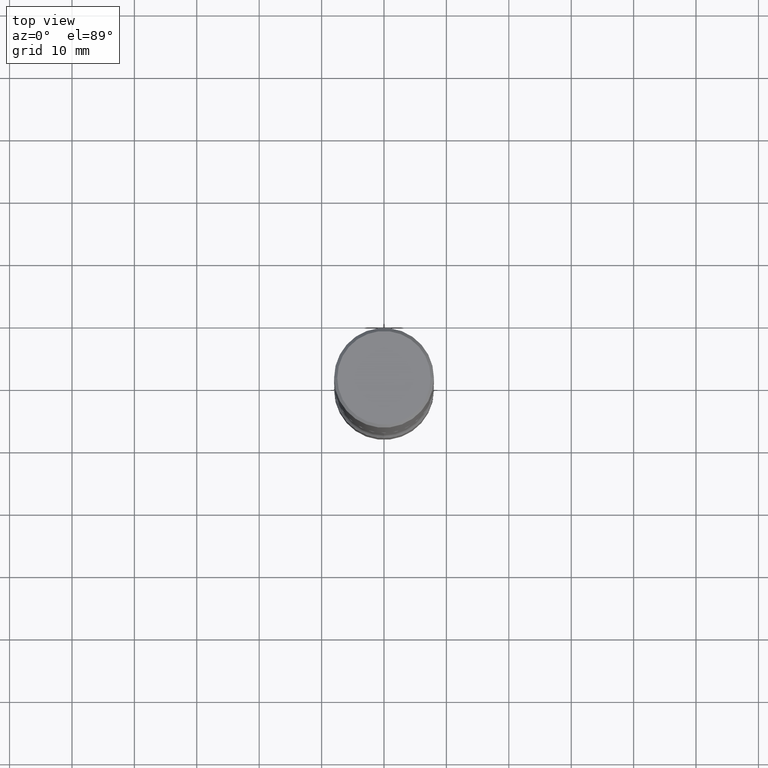
[diagram: clean part render]
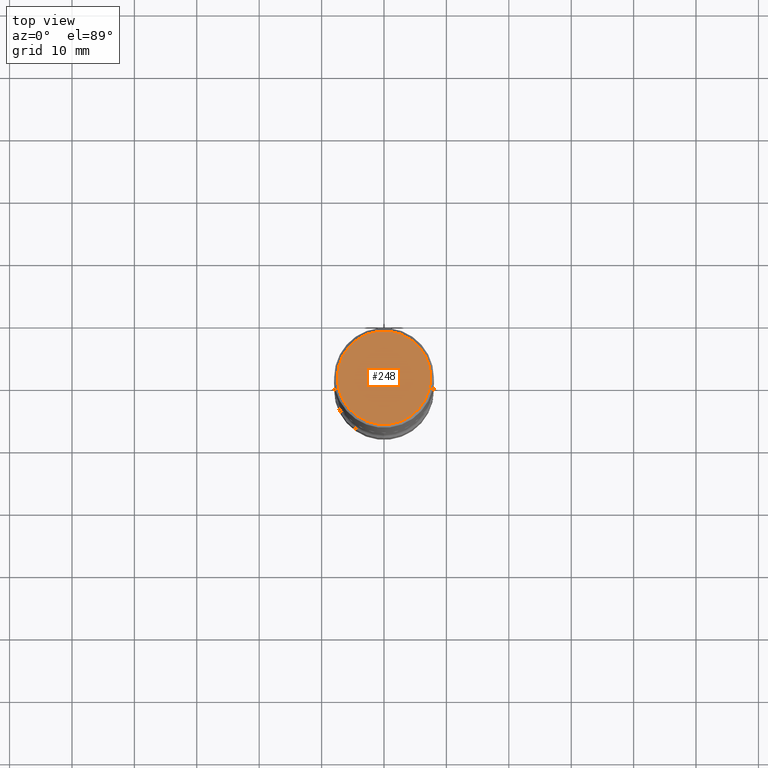
[diagram: same view with one face highlighted and labeled with its STEP entity id]
A machine part, top view. The second image highlights one B-rep face of the part: STEP entity #248.
In plain terms, the highlighted planar face has unit normal (0, -0, -1).
Its self-contained STEP definition (entity closure, byte-faithful):
#10 = DIRECTION ( 'NONE',  ( -1.000000000000000000, 6.982962677686265922E-15, -4.876176775795935793E-29 ) ) ;
#13 = AXIS2_PLACEMENT_3D ( 'NONE', #432, #486, #10 ) ;
#62 = VERTEX_POINT ( 'NONE', #163 ) ;
#100 = CIRCLE ( 'NONE', #418, 0.2949499999999998789 ) ;
#163 = CARTESIAN_POINT ( 'NONE',  ( -0.2949499999999998789, 2.094539655171994924E-15, 1.280553747028670770E-17 ) ) ;
#175 = DIRECTION ( 'NONE',  ( -2.445468806185136597E-29, 3.491481338843145583E-15, 1.000000000000000000 ) ) ;
#211 = PLANE ( 'NONE',  #13 ) ;
#219 = EDGE_LOOP ( 'NONE', ( #450, #510 ) ) ;
#224 = CIRCLE ( 'NONE', #253, 0.2949499999999998789 ) ;
#246 = DIRECTION ( 'NONE',  ( 1.000000000000000000, -6.982962677686267499E-15, 4.876053491004736589E-29 ) ) ;
#248 = ADVANCED_FACE ( 'NONE', ( #341 ), #211, .F. ) ;
#253 = AXIS2_PLACEMENT_3D ( 'NONE', #520, #175, #438 ) ;
#271 = EDGE_CURVE ( 'NONE', #62, #439, #224, .T. ) ;
#341 = FACE_OUTER_BOUND ( 'NONE', #219, .T. ) ;
#371 = EDGE_CURVE ( 'NONE', #439, #62, #100, .T. ) ;
#418 = AXIS2_PLACEMENT_3D ( 'NONE', #508, #434, #246 ) ;
#432 = CARTESIAN_POINT ( 'NONE',  ( 2.059624841783563274E-15, 0.2949499999999998789, -1.023409652156634744E-15 ) ) ;
#434 = DIRECTION ( 'NONE',  ( -2.445468806185136597E-29, 3.491481338843145583E-15, 1.000000000000000000 ) ) ;
#438 = DIRECTION ( 'NONE',  ( 1.000000000000000000, -6.982962677686267499E-15, 4.876053491004736589E-29 ) ) ;
#439 = VERTEX_POINT ( 'NONE', #559 ) ;
#450 = ORIENTED_EDGE ( 'NONE', *, *, #271, .T. ) ;
#486 = DIRECTION ( 'NONE',  ( 2.438088387897960049E-29, -3.491481338843145188E-15, -1.000000000000000000 ) ) ;
#508 = CARTESIAN_POINT ( 'NONE',  ( -3.131554243005659264E-46, 4.471029511141341874E-32, 1.280553747030123384E-17 ) ) ;
#510 = ORIENTED_EDGE ( 'NONE', *, *, #371, .T. ) ;
#520 = CARTESIAN_POINT ( 'NONE',  ( -3.131554243005659264E-46, 4.471029511141341874E-32, 1.280553747030123384E-17 ) ) ;
#559 = CARTESIAN_POINT ( 'NONE',  ( 0.2949499999999998789, -2.127023677808859286E-15, 1.280553747031587399E-17 ) ) ;